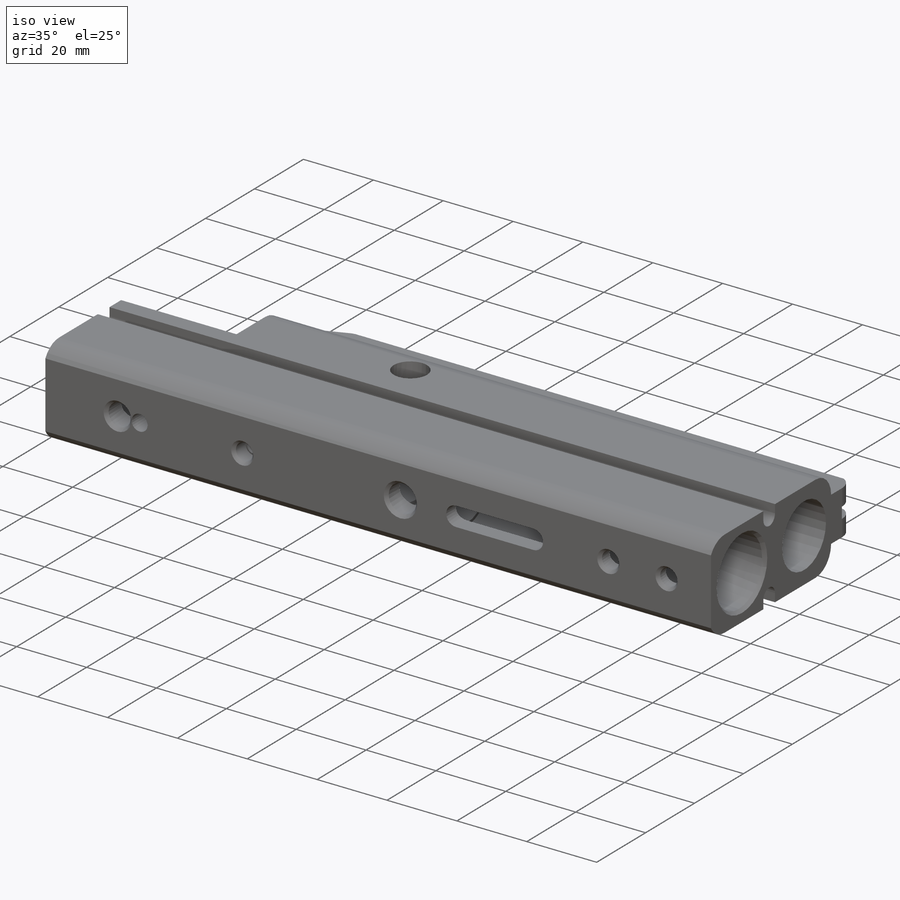
[diagram: iso view]
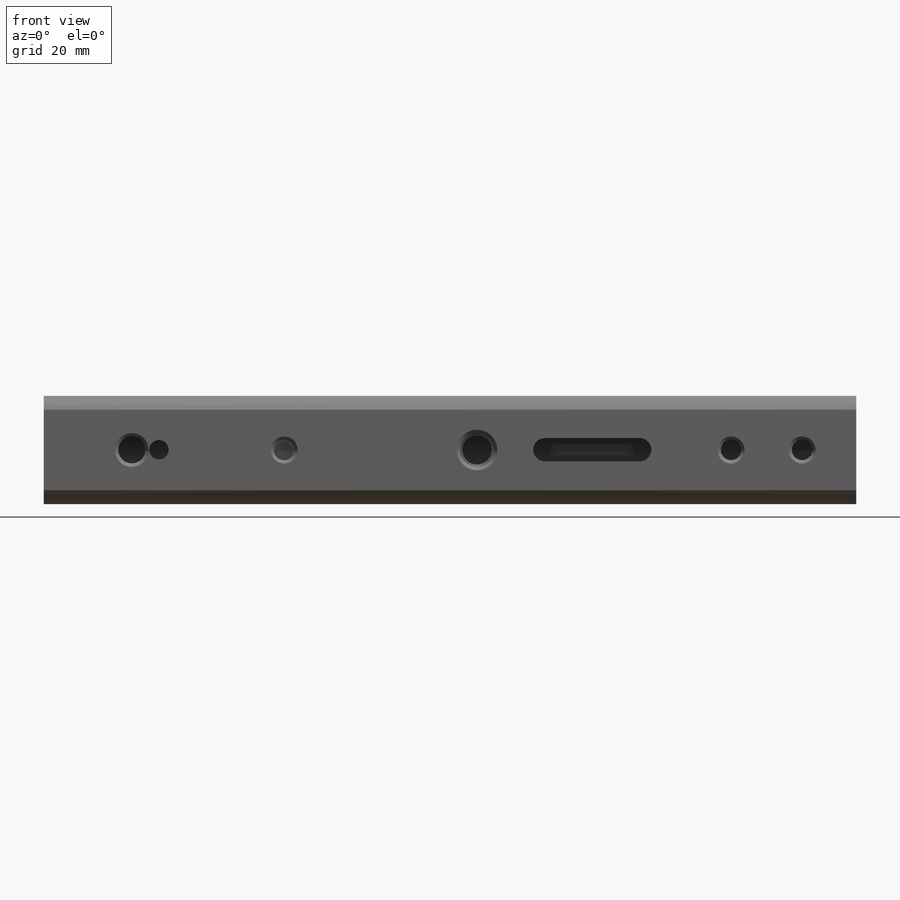
[diagram: front view]
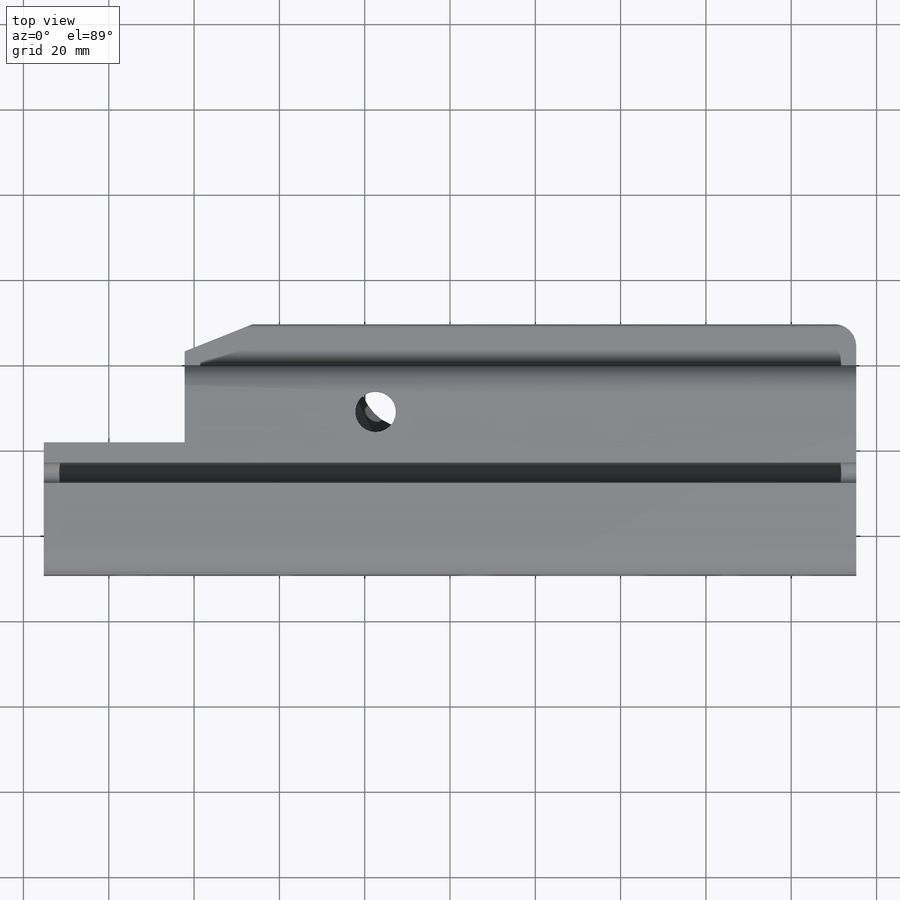
[diagram: top view]
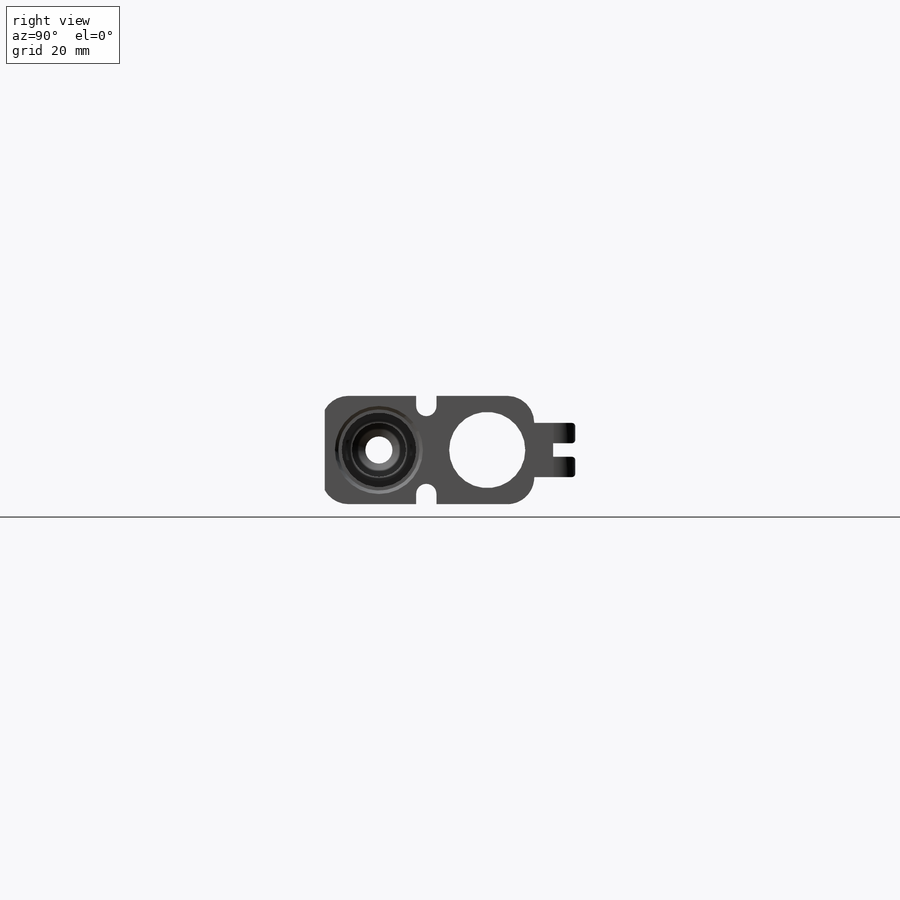
[diagram: right view]
SOLIDWORKS PART (.sldprt)
format: sldprt  version: not decoded by parser v0  size: 1,707,520 bytes
history: native  units: mm
features: sketch x50, cut_extrude x18, hole x15, fillet x5, extrude x2, mirror x2, material x1, pattern_linear x1, chamfer x1, plane x1 (+12 scaffold rows collapsed)
feature tree (108):
  scaffold x12  (default folders/planes/origin — collapsed)
  material  "Material <not specified>"
  sketch  "Sketch1"  dims[D1=58.7375mm D2=190.5mm]
  extrude  "Base-Extrude"  Depth=25.4mm
  sketch  "Sketch2"  dims[c1.D1=~16.577708mm c1.D2=17.8562mm c2.D1=38.1mm]
  cut_extrude  "Cut-Extrude1"  [1 undecoded]
  hole  "1/2 (0.500000) Diameter Hole1"  Diameter=12.7mm Depth=130.175mm
  sketch  "Sketch4"  dims[c1.D2=17.5006mm c1.D1=12.7mm c2.D2=28.575mm]
  sketch  "Sketch3"  dims[hole-wizard template sketch: 47 standard entries collapsed; hole parameters kept: c15.Hole Depth=130.175mm c15.D3=~14.816244mm c15.Drill Angle=118.0deg]
  sketch  "Sketch8"  dims[D1=12.7mm]
  cut_extrude  "Cut-Extrude5"  Depth=33.02mm
  sketch  "Sketch9"  dims[D2=12.7mm D1=~3.96875mm]
  cut_extrude  "Cut-Extrude6"  [1 undecoded]
  hole  "5/16-24 Tapped Hole1"  Diameter=6.9088mm Depth=38.099mm
  sketch  "Sketch11"  dims[D1=88.9mm]
  sketch  "Sketch10"  dims[hole-wizard template sketch: 26 standard entries collapsed; hole parameters kept: c8.Tap Drill Dia.=6.9088mm c8.Tap Drill Depth=38.099mm c8.Thread Dia.=7.9375mm c8.Thread Depth=15.875mm c8.Near C'Sink Dia.=9.525mm c8.D6=~4.399409mm c8.Near C'Sink Angle=82.0deg c8.D7=~14.816244mm c8.Drill Angle=118.0deg]
  hole  "#10-32 Tapped Hole1"  Diameter=4.0386mm Depth=6.35mm
  sketch  "Sketch13"  dims[c1.D1=104.775mm c1.D2=57.15mm c2.D1=12.7mm c2.D3=~29.36875mm c2.D4=~84.93125mm c2.D2=104.775mm]
  sketch  "Sketch12"  dims[hole-wizard template sketch: 41 standard entries collapsed; hole parameters kept: c12.Thru Tap Drill Dia.=4.0386mm c12.Thru Tap Drill Depth=6.35mm c12.Thread Dia.=4.826mm c12.Thread Depth=9.652mm c12.Near C'Sink Dia.=6.35mm c12.D6=~4.399409mm c12.Near C'Sink Angle=82.0deg]
  hole  "#10-32 Tapped Hole2"  Diameter=4.0386mm Depth=5.5372mm
  sketch  "Sketch32"  dims[D1=104.775mm]
  sketch  "Sketch31"  dims[hole-wizard template sketch: 26 standard entries collapsed; hole parameters kept: c8.Tap Drill Dia.=4.0386mm c8.Tap Drill Depth=5.5372mm c8.Thread Dia.=4.826mm c8.Thread Depth=4.7625mm c8.Near C'Sink Dia.=6.35mm c8.D6=~4.399409mm c8.Near C'Sink Angle=82.0deg c8.D7=~14.816244mm c8.Drill Angle=160.0deg]
  sketch  "Sketch14"  dims[D1=22.225mm D2=50.8mm]
  cut_extrude  "Cut-Extrude7"  [1 undecoded]
  sketch  "Sketch15"  dims[D1=6.35mm]
  cut_extrude  "Cut-Extrude9"  [1 undecoded]
  fillet  "Fillet20"  Radius=6.35mm
  hole  "7/8-14 Tapped Hole1"  Diameter=20.6375mm Depth=10.3124mm
  sketch  "Sketch17"  dims[D1=104.775mm]
  sketch  "Sketch16"  dims[hole-wizard template sketch: 28 standard entries collapsed; hole parameters kept: c8.Tap Drill Dia.=20.6375mm c8.Tap Drill Depth=10.3124mm c8.Thread Dia.=22.225mm c8.Thread Depth=6.35mm c8.D5=~14.816244mm c8.Drill Angle=180.0deg]
  hole  "11/16 (0.687500) Diameter Hole1"  Diameter=17.4625mm Depth=78.58125mm
  sketch  "Sketch21"
  sketch  "Sketch20"  dims[hole-wizard template sketch: 46 standard entries collapsed; hole parameters kept: c15.Hole Dia.=17.4625mm c15.Hole Depth=~78.58125mm c15.D3=~14.816244mm c15.Drill Angle=180.0deg]
  sketch  "Sketch24"  dims[D1=17.4625mm]
  cut_extrude  "Cut-Extrude10"  Depth=19.05mm
  hole  "9/16-18 Tapped Hole1"  Diameter=13.09624mm Depth=52.3875mm
  sketch  "Sketch26"
  sketch  "Sketch25"  dims[hole-wizard template sketch: 26 standard entries collapsed; hole parameters kept: c8.Tap Drill Dia.=~13.09624mm c8.Tap Drill Depth=52.3875mm c8.Thread Dia.=14.2875mm c8.Thread Depth=15.875mm c8.Near C'Sink Dia.=15.875mm c8.D6=~4.399409mm c8.Near C'Sink Angle=82.0deg c8.D7=~14.816244mm c8.Drill Angle=118.0deg]
  sketch  "Sketch27"
  cut_extrude  "Cut-Extrude11"  [1 undecoded]
  sketch  "Sketch28"  dims[D1=4.7625mm D2=~21.43125mm]
  cut_extrude  "Cut-Extrude14"  Depth=4.7625mm
  fillet  "Fillet2"  Radius=2.38125mm
  hole  "3/4-16 Tapped Hole1"  Diameter=17.4625mm Depth=30.1625mm
  sketch  "Sketch30"
  sketch  "Sketch29"  dims[hole-wizard template sketch: 26 standard entries collapsed; hole parameters kept: c8.Tap Drill Dia.=17.4625mm c8.Tap Drill Depth=30.1625mm c8.Thread Dia.=19.05mm c8.Thread Depth=25.4mm c8.Near C'Sink Dia.=20.6375mm c8.D6=~4.399409mm c8.Near C'Sink Angle=82.0deg c8.D7=~14.816244mm c8.Drill Angle=118.0deg]
  mirror  "Mirror1"
  sketch  "Sketch33"  dims[c1.D1=6.35mm c1.D2=19.05mm c1.D3=25.4mm c1.D4=25.4mm c1.D5=25.4mm c2.D1=9.525mm c2.D3=4.7625mm c2.D4=25.4mm c2.D5=9.525mm c2.D6=~26.529339mm c3.D1=25.4mm c3.D5=25.4mm c3.D6=~13.101699mm c4.D5=~26.529339mm c4.D6=~26.529339mm c5.D5=10.2997mm c5.D6=~13.101699mm c6.D5=~8.611895mm c6.D6=~13.047811mm c7.D5=~2.056562mm c7.D6=~17.052119mm c8.D5=~1.157743mm c8.D6=~24.523419mm c9.D5=25.4mm c9.D6=~17.052119mm c10.D5=~2.056562mm c10.D6=~17.052119mm c11.D5=~3.357448mm c11.D6=15.875mm c12.D5=21.0566mm c12.D6=20.6037mm c13.D5=~20.398114mm c13.D6=20.6375mm c14.D5=15.875mm c14.D6=~17.052119mm c15.D5=~2.056562mm c15.D6=~2.992552mm c16.D5=~8.611895mm c16.D6=~9.545699mm c16.D1=9.525mm]
  cut_extrude  "Cut-Extrude16"  [1 undecoded]
  fillet  "Fillet6"  Radius=1.5875mm
  pattern_linear  "LPattern1"  Count1=4 Count2=1 Spacing1=44.45mm Spacing2=50mm
  hole  "5/8-18 Tapped Hole1"  Diameter=14.68374mm Depth=93.6625mm
  sketch  "Sketch23"
  sketch  "Sketch22"  dims[hole-wizard template sketch: 26 standard entries collapsed; hole parameters kept: c8.Tap Drill Dia.=~14.68374mm c8.Tap Drill Depth=93.6625mm c8.Thread Dia.=15.875mm c8.Thread Depth=85.725mm c8.Near C'Sink Dia.=17.4625mm c8.D6=~4.399409mm c8.Near C'Sink Angle=82.0deg c8.D7=~14.816244mm c8.Drill Angle=160.0deg]
  chamfer  "Chamfer1"  Distance=15.875mm
  fillet  "Fillet9"  Radius=0.79375mm
  sketch  "Sketch38"  dims[c1.D1=4.7625mm c1.D2=50.8mm c1.D3=9.525mm c1.D4=9.525mm c2.D3=9.525mm c2.D4=9.525mm c2.D5=~6.435373mm c3.D3=9.525mm c3.D4=165.1mm]
  cut_extrude  "Cut-Extrude19"  [1 undecoded]
  sketch  "Sketch39"  dims[D1=12.7mm]
  cut_extrude  "Cut-Extrude20"  [1 undecoded]
  sketch  "Sketch40"  dims[c1.D1=25.4mm c1.D2=17.4625mm c1.D3=1.5875mm c1.D4=6.35mm c2.D3=~5.55625mm c2.D4=6.35mm c3.D3=~5.55625mm c3.D4=~2.38125mm c4.D3=1.5875mm c4.D4=~2.38125mm c5.D3=52.3875mm c5.D4=~2.38125mm c6.D3=1.5875mm c6.D4=1.5875mm c7.D3=12.7mm c7.D4=6.35mm c8.D3=6.35mm c8.D4=1.5875mm c9.D3=~98.091563mm c9.D4=~2.38125mm c10.D3=1.5875mm c10.D4=106.3625mm c11.D3=106.3625mm c11.D4=~105.449395mm c12.D3=106.3625mm c12.D4=~105.449395mm c13.D3=106.3625mm c13.D4=~5.55625mm c14.D3=106.3625mm c14.D4=106.3625mm c14.D2=106.3625mm]
  extrude  "Boss-Extrude1"  Depth=12.7mm
  sketch  "Sketch41"  dims[D1=19.05mm]
  cut_extrude  "Cut-Extrude21"  Depth=28.575mm
  hole  "3/8-24 Tapped Hole1"  Diameter=8.4328mm Depth=9.52754mm
  sketch  "Sketch43"  dims[c1.D1=114.3mm c1.D2=114.3mm c1.D3=114.3mm c2.D2=114.3mm c2.D3=~113.386895mm c3.D2=114.3mm c3.D3=114.3mm c4.D2=114.3mm c4.D3=114.3mm c5.D2=114.3mm c5.D3=~113.386895mm c6.D2=114.3mm c6.D3=114.3mm c6.D1=112.7125mm]
  sketch  "Sketch42"  dims[hole-wizard template sketch: 28 standard entries collapsed; hole parameters kept: c8.Tap Drill Dia.=8.4328mm c8.Tap Drill Depth=~9.52754mm c8.Thread Dia.=9.525mm c8.Thread Depth=6.35mm c8.D5=~14.816244mm c8.Drill Angle=180.0deg]
  fillet  "Fillet21"  Radius=5.08mm
  sketch  "Sketch44"  dims[D1=25.4mm D2=6.35mm D3=6.35mm]
  cut_extrude  "Cut-Extrude22"  [1 undecoded]
  plane  "Plane1"
  sketch  "Sketch45"  dims[c1.D1=22.225mm c1.D2=106.3625mm c1.D3=106.3625mm c1.D4=106.3625mm c2.D3=106.3625mm c2.D4=~105.449395mm c3.D3=~105.449395mm c3.D4=~105.449395mm c4.D3=~105.449395mm c4.D4=~105.449395mm c5.D3=106.3625mm c5.D4=106.3625mm c6.D3=106.3625mm c6.D4=106.3625mm c7.D3=106.3625mm c7.D4=106.3625mm c8.D3=106.3625mm c8.D4=~105.449395mm c9.D3=96.8375mm c9.D4=93.6625mm c10.D3=93.6625mm c10.D4=93.6625mm c11.D3=93.6625mm c11.D4=~10.664054mm c12.D3=~10.664054mm c12.D4=~10.664054mm c13.D3=~10.664054mm c13.D4=~10.664054mm c14.D3=~10.664054mm c14.D4=~10.664054mm c15.D3=~10.664054mm c15.D4=~10.664054mm c16.D3=~10.664054mm c16.D4=~10.664054mm c17.D3=~10.664054mm c17.D4=~10.664054mm c18.D3=~10.664054mm c18.D4=~10.664054mm c19.D3=~10.664054mm c19.D4=96.8375mm c20.D3=96.8375mm c20.D4=~10.664054mm c21.D3=~10.664054mm c21.D4=101.6mm c22.D3=101.6mm c22.D4=~105.449395mm c23.D3=~105.449395mm c23.D4=~105.449395mm c23.D2=~105.449395mm c24.D3=106.3625mm c24.D4=106.3625mm c25.D3=~105.449395mm c25.D4=~3.479849mm c26.D3=~108.706084mm c26.D4=106.3625mm c27.D3=~105.449395mm c27.D4=106.3625mm c28.D3=~108.706084mm c28.D4=106.3625mm c29.D3=~107.041226mm c29.D4=~105.449395mm c30.D3=~107.041226mm c30.D2=106.3625mm]
  cut_extrude  "Cut-Extrude23"  [1 undecoded]
  hole  "7/8 (0.875000) Diameter Hole1"  Diameter=22.225mm Depth=31.75mm
  sketch  "Sketch47"
  sketch  "Sketch46"  dims[hole-wizard template sketch: 46 standard entries collapsed; hole parameters kept: c15.Hole Dia.=22.225mm c15.Hole Depth=31.75mm c15.D3=~14.816244mm c15.Drill Angle=180.0deg]
  hole  "15/16 (0.937500) Diameter Hole1"  Diameter=23.8125mm Depth=19.05mm
  sketch  "Sketch49"
  sketch  "Sketch48"  dims[hole-wizard template sketch: 46 standard entries collapsed; hole parameters kept: c15.Hole Dia.=23.8125mm c15.Hole Depth=19.05mm c15.D3=~14.816244mm c15.Drill Angle=180.0deg]
  sketch  "Sketch50"  dims[D1=~3.96875mm]
  cut_extrude  "Cut-Extrude24"  [1 undecoded]
  hole  "3/8-24 Tapped Hole2"  Diameter=8.4328mm Depth=61.9125mm
  sketch  "Sketch52"
  sketch  "Sketch51"  dims[hole-wizard template sketch: 26 standard entries collapsed; hole parameters kept: c8.Tap Drill Dia.=8.4328mm c8.Tap Drill Depth=61.9125mm c8.Thread Dia.=9.525mm c8.Thread Depth=19.05mm c8.Near C'Sink Dia.=11.1125mm c8.D6=~4.399409mm c8.Near C'Sink Angle=82.0deg c8.D7=~14.816244mm c8.Drill Angle=118.0deg]
  hole  "1/4-20 Tapped Hole1"  Diameter=5.1054mm Depth=16.51mm
  sketch  "Sketch55"  dims[D1=169.8625mm]
  sketch  "Sketch54"  dims[hole-wizard template sketch: 27 standard entries collapsed; hole parameters kept: c8.Tap Drill Depth=16.51mm c8.Thread Dia.=6.35mm c8.Thread Depth=12.7mm c8.Near C'Sink Dia.=7.9375mm c8.D6=~4.399409mm c8.Near C'Sink Angle=82.0deg c8.D7=~14.816244mm c8.Drill Angle=118.0deg]
  hole  "#15 (0.180000) Diameter Hole1"  Diameter=4.572mm Depth=6.15188mm
  sketch  "Sketch57"  dims[D1=163.5125mm]
  sketch  "Sketch56"  dims[hole-wizard template sketch: 59 standard entries collapsed; hole parameters kept: c18.Thru Hole Dia.=4.572mm c18.Thru Hole Depth=~6.15188mm]
  sketch  "Sketch58"  dims[D1=26.9875mm]
  cut_extrude  "Cut-Extrude25"  [1 undecoded]
  sketch  "Sketch59"  dims[D1=6.35mm D2=~5.55625mm D3=0.0mm]
  cut_extrude  "Cut-Extrude26"  [1 undecoded]
  sketch  "Sketch60"  dims[D1=6.35mm D2=6.35mm]
  cut_extrude  "Cut-Extrude27"  [1 undecoded]
  mirror  "Mirror2"
decode coverage: 70 of 94 modeling features carry decoded parameters
note: ~ marks probable driven/reference dimensions
note: 14 parameter values undecoded
summary: no parameter record found for 14 features; Diameter pulled from absorbed wizard sketch
note: suppression state not decoded; provenance and decode notes live in map.json
